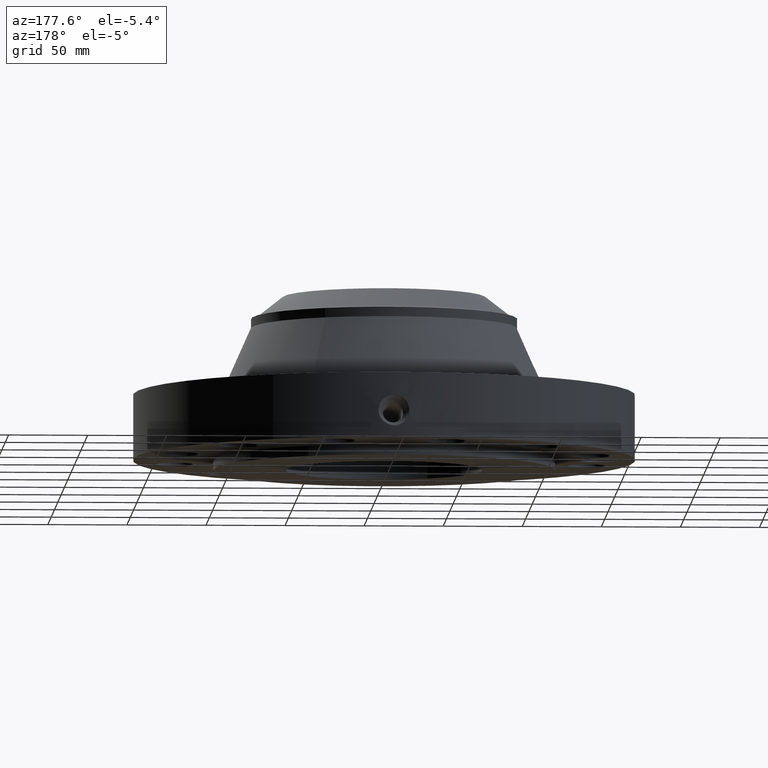
[diagram: clean part render]
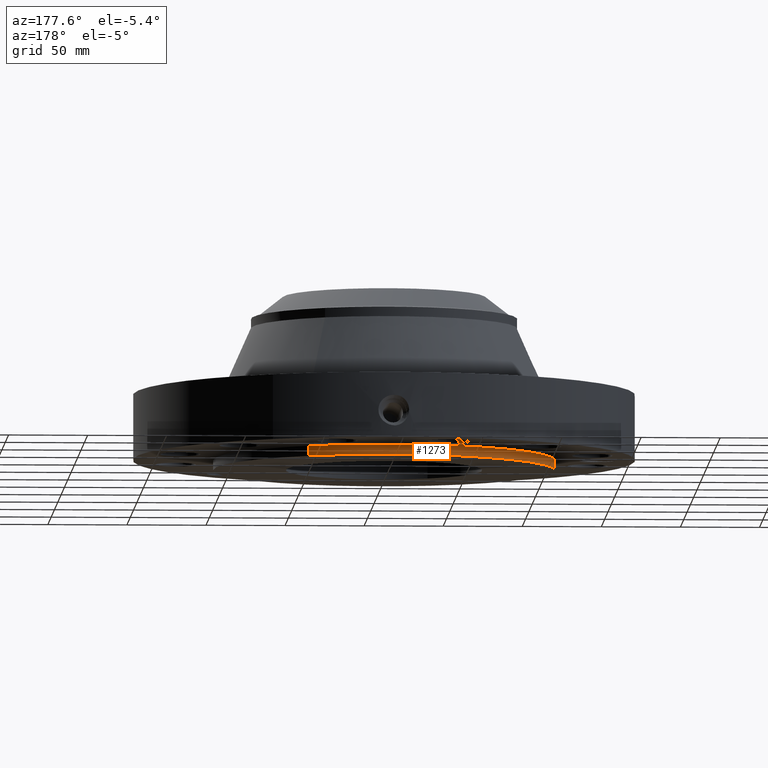
[diagram: same view with one face highlighted and labeled with its STEP entity id]
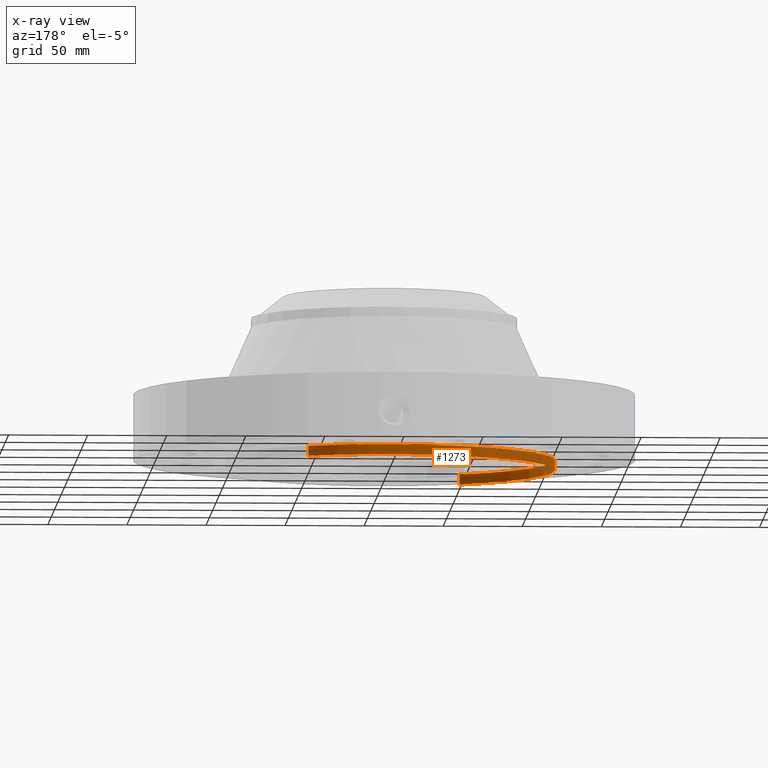
[diagram: x-ray of the same camera — body ghosted, the highlighted face saturated]
A machine part, auxiliary view. The second image highlights one B-rep face of the part: STEP entity #1273.
The next image is the same camera in x-ray: the body ghosted, the highlighted face saturated — about 8% of this face is hidden behind the body in this view.
In plain terms, the highlighted cylindrical surface (partial cylindrical patch) has radius 107.95 mm, axis along (0, 0, -1).
Its self-contained STEP definition (entity closure, byte-faithful):
#222=AXIS2_PLACEMENT_3D('Circle Axis2P3D',#220,#221,$) ;
#1234=AXIS2_PLACEMENT_3D('Cylinder Axis2P3D',#1231,#1232,#1233) ;
#1264=AXIS2_PLACEMENT_3D('Circle Axis2P3D',#1262,#1263,$) ;
#215=CARTESIAN_POINT('Vertex',(2.03755853908,3.72972588805,0.250000000001)) ;
#217=CARTESIAN_POINT('Vertex',(-2.03755853908,-3.72972588805,0.250000000001)) ;
#220=CARTESIAN_POINT('Axis2P3D Location',(0.,0.,0.250000000001)) ;
#1231=CARTESIAN_POINT('Axis2P3D Location',(0.,0.,2.15500000001)) ;
#1240=CARTESIAN_POINT('Vertex',(2.03755853908,3.72972588805,2.79741234551E-016)) ;
#1242=CARTESIAN_POINT('Vertex',(-2.03755853908,-3.72972588805,2.79741234551E-016)) ;
#1245=CARTESIAN_POINT('Line Origine',(2.03755853908,3.72972588805,0.125000000001)) ;
#1250=CARTESIAN_POINT('Line Origine',(-2.03755853908,-3.72972588805,0.125000000001)) ;
#1262=CARTESIAN_POINT('Axis2P3D Location',(0.,0.,2.79741234551E-016)) ;
#221=DIRECTION('Axis2P3D Direction',(0.,0.,-0.0393700787402)) ;
#1232=DIRECTION('Axis2P3D Direction',(0.,0.,-0.0393700787402)) ;
#1233=DIRECTION('Axis2P3D XDirection',(-0.0188750212049,-0.0345504945626,0.)) ;
#1246=DIRECTION('Vector Direction',(0.,0.,-0.0393700787402)) ;
#1251=DIRECTION('Vector Direction',(0.,0.,-0.0393700787402)) ;
#1263=DIRECTION('Axis2P3D Direction',(0.,0.,-0.0393700787402)) ;
#1247=VECTOR('Line Direction',#1246,0.0393700787402) ;
#1252=VECTOR('Line Direction',#1251,0.0393700787402) ;
#1268=ORIENTED_EDGE('',*,*,#1266,.F.) ;
#1269=ORIENTED_EDGE('',*,*,#1254,.T.) ;
#1270=ORIENTED_EDGE('',*,*,#224,.T.) ;
#1271=ORIENTED_EDGE('',*,*,#1249,.F.) ;
#1273=ADVANCED_FACE('PartBody',(#1272),#1235,.T.) ;
#223=CIRCLE('generated circle',#222,4.25000000002) ;
#1265=CIRCLE('generated circle',#1264,4.25000000002) ;
#1235=CYLINDRICAL_SURFACE('generated cylinder',#1234,4.25000000002) ;
#224=EDGE_CURVE('',#218,#216,#223,.T.) ;
#1249=EDGE_CURVE('',#1241,#216,#1248,.F.) ;
#1254=EDGE_CURVE('',#1243,#218,#1253,.F.) ;
#1266=EDGE_CURVE('',#1243,#1241,#1265,.T.) ;
#1267=EDGE_LOOP('',(#1268,#1269,#1270,#1271)) ;
#1272=FACE_OUTER_BOUND('',#1267,.T.) ;
#1248=LINE('Line',#1245,#1247) ;
#1253=LINE('Line',#1250,#1252) ;
#216=VERTEX_POINT('',#215) ;
#218=VERTEX_POINT('',#217) ;
#1241=VERTEX_POINT('',#1240) ;
#1243=VERTEX_POINT('',#1242) ;